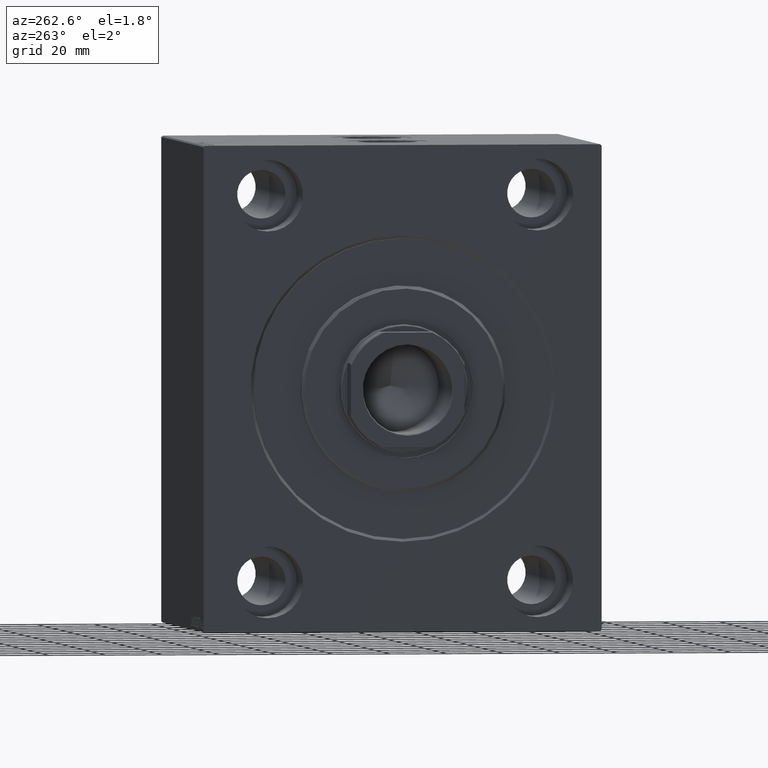
[diagram: clean part render]
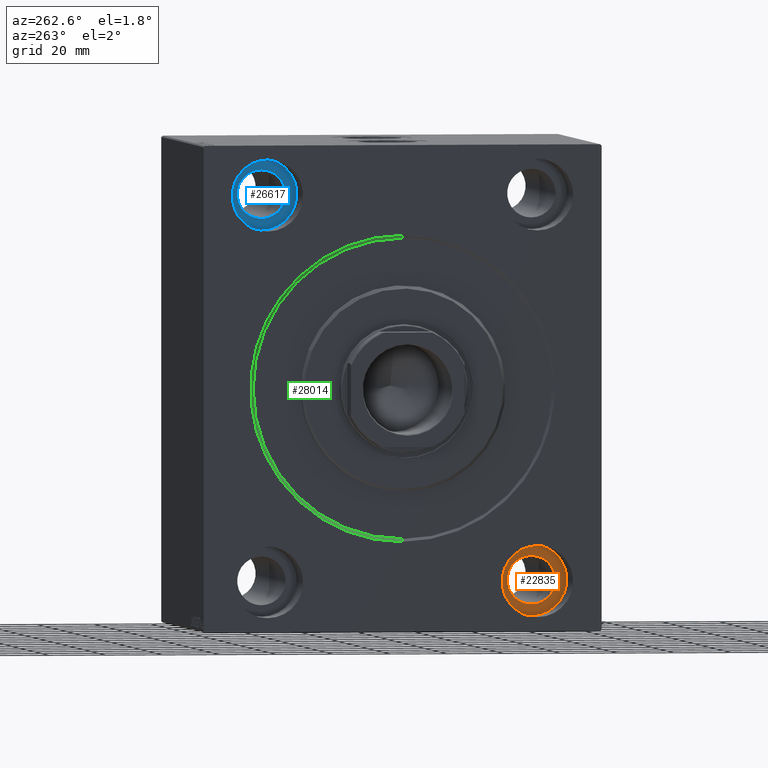
[diagram: same view with three faces highlighted in distinct colors, each labeled with its STEP entity id]
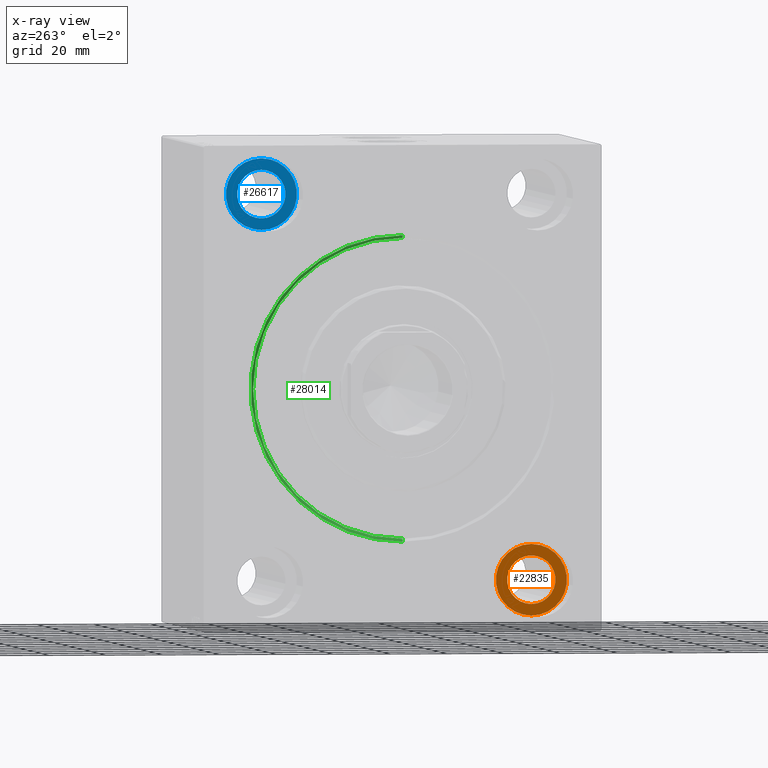
[diagram: x-ray of the same camera — body ghosted, the three highlighted faces saturated]
A machine part, auxiliary view with three faces highlighted in distinct colors.
The next image is the same camera in x-ray (body ghosted, the three faces saturated) — at least one of them is partly hidden behind the body in this view.
Their STEP definitions:

[orange] entity #22835 — the highlighted planar face has unit normal (-1, 0, 0).
#247 = PLANE ( 'NONE',  #7130 ) ;
#604 = AXIS2_PLACEMENT_3D ( 'NONE', #2295, #38782, #12311 ) ;
#1562 = ORIENTED_EDGE ( 'NONE', *, *, #41031, .T. ) ;
#2295 = CARTESIAN_POINT ( 'NONE',  ( 17.00000000000000000, -47.49999999999999289, -67.50000000000000000 ) ) ;
#3621 = FACE_OUTER_BOUND ( 'NONE', #9381, .T. ) ;
#4194 = DIRECTION ( 'NONE',  ( 0.000000000000000000, 0.000000000000000000, 1.000000000000000000 ) ) ;
#4588 = CARTESIAN_POINT ( 'NONE',  ( 17.00000000000000000, -47.49999999999999289, -55.00000000000000711 ) ) ;
#6450 = CARTESIAN_POINT ( 'NONE',  ( 17.00000000000000000, -47.49999999999999289, -76.00000000000000000 ) ) ;
#7114 = ORIENTED_EDGE ( 'NONE', *, *, #32822, .F. ) ;
#7130 = AXIS2_PLACEMENT_3D ( 'NONE', #15338, #30983, #21779 ) ;
#9381 = EDGE_LOOP ( 'NONE', ( #9770, #1562 ) ) ;
#9770 = ORIENTED_EDGE ( 'NONE', *, *, #23290, .T. ) ;
#9928 = AXIS2_PLACEMENT_3D ( 'NONE', #20720, #20928, #20280 ) ;
#11622 = CARTESIAN_POINT ( 'NONE',  ( 17.00000000000000000, -47.49999999999999289, -59.00000000000001421 ) ) ;
#12311 = DIRECTION ( 'NONE',  ( 0.000000000000000000, 0.000000000000000000, 1.000000000000000000 ) ) ;
#13447 = VERTEX_POINT ( 'NONE', #11622 ) ;
#14201 = ORIENTED_EDGE ( 'NONE', *, *, #43703, .F. ) ;
#14820 = CIRCLE ( 'NONE', #604, 12.49999999999999645 ) ;
#15338 = CARTESIAN_POINT ( 'NONE',  ( 17.00000000000000000, 0.000000000000000000, 0.000000000000000000 ) ) ;
#19671 = AXIS2_PLACEMENT_3D ( 'NONE', #21979, #28658, #4194 ) ;
#20280 = DIRECTION ( 'NONE',  ( 0.000000000000000000, 0.000000000000000000, 1.000000000000000000 ) ) ;
#20720 = CARTESIAN_POINT ( 'NONE',  ( 17.00000000000000000, -47.49999999999999289, -67.50000000000000000 ) ) ;
#20747 = VERTEX_POINT ( 'NONE', #21682 ) ;
#20928 = DIRECTION ( 'NONE',  ( -1.000000000000000000, 0.000000000000000000, 0.000000000000000000 ) ) ;
#21682 = CARTESIAN_POINT ( 'NONE',  ( 17.00000000000000000, -47.49999999999999289, -80.00000000000000000 ) ) ;
#21779 = DIRECTION ( 'NONE',  ( 0.000000000000000000, 0.000000000000000000, 1.000000000000000000 ) ) ;
#21979 = CARTESIAN_POINT ( 'NONE',  ( 17.00000000000000000, -47.49999999999999289, -67.50000000000000000 ) ) ;
#22835 = ADVANCED_FACE ( 'NONE', ( #25564, #3621 ), #247, .T. ) ;
#23290 = EDGE_CURVE ( 'NONE', #28601, #20747, #44053, .T. ) ;
#25506 = CARTESIAN_POINT ( 'NONE',  ( 17.00000000000000000, -47.49999999999999289, -67.50000000000000000 ) ) ;
#25564 = FACE_BOUND ( 'NONE', #27180, .T. ) ;
#26247 = CIRCLE ( 'NONE', #9928, 8.499999999999992895 ) ;
#27180 = EDGE_LOOP ( 'NONE', ( #14201, #7114 ) ) ;
#28601 = VERTEX_POINT ( 'NONE', #4588 ) ;
#28658 = DIRECTION ( 'NONE',  ( -1.000000000000000000, 0.000000000000000000, 0.000000000000000000 ) ) ;
#28859 = DIRECTION ( 'NONE',  ( -1.000000000000000000, 0.000000000000000000, 0.000000000000000000 ) ) ;
#30983 = DIRECTION ( 'NONE',  ( -1.000000000000000000, 0.000000000000000000, 0.000000000000000000 ) ) ;
#32822 = EDGE_CURVE ( 'NONE', #37360, #13447, #38857, .T. ) ;
#36241 = AXIS2_PLACEMENT_3D ( 'NONE', #25506, #28859, #42419 ) ;
#37360 = VERTEX_POINT ( 'NONE', #6450 ) ;
#38782 = DIRECTION ( 'NONE',  ( -1.000000000000000000, 0.000000000000000000, 0.000000000000000000 ) ) ;
#38857 = CIRCLE ( 'NONE', #19671, 8.499999999999992895 ) ;
#41031 = EDGE_CURVE ( 'NONE', #20747, #28601, #14820, .T. ) ;
#42419 = DIRECTION ( 'NONE',  ( 0.000000000000000000, 0.000000000000000000, 1.000000000000000000 ) ) ;
#43703 = EDGE_CURVE ( 'NONE', #13447, #37360, #26247, .T. ) ;
#44053 = CIRCLE ( 'NONE', #36241, 12.49999999999999645 ) ;

[blue] entity #26617 — the highlighted planar face has unit normal (-1, 0, 0).
#1645 = DIRECTION ( 'NONE',  ( -1.000000000000000000, 0.000000000000000000, 0.000000000000000000 ) ) ;
#1934 = AXIS2_PLACEMENT_3D ( 'NONE', #7915, #1645, #25451 ) ;
#2351 = EDGE_CURVE ( 'NONE', #30856, #42206, #2438, .T. ) ;
#2438 = CIRCLE ( 'NONE', #26581, 12.50000000000001066 ) ;
#3021 = DIRECTION ( 'NONE',  ( 0.000000000000000000, 0.000000000000000000, 1.000000000000000000 ) ) ;
#6438 = DIRECTION ( 'NONE',  ( 0.000000000000000000, 0.000000000000000000, 1.000000000000000000 ) ) ;
#7915 = CARTESIAN_POINT ( 'NONE',  ( 17.00000000000000000, 47.50000000000000711, 67.50000000000000000 ) ) ;
#9676 = DIRECTION ( 'NONE',  ( 0.000000000000000000, 0.000000000000000000, 1.000000000000000000 ) ) ;
#10610 = EDGE_CURVE ( 'NONE', #42206, #30856, #12574, .T. ) ;
#11451 = ORIENTED_EDGE ( 'NONE', *, *, #2351, .T. ) ;
#11817 = ORIENTED_EDGE ( 'NONE', *, *, #39403, .F. ) ;
#12574 = CIRCLE ( 'NONE', #1934, 12.50000000000001066 ) ;
#13498 = CIRCLE ( 'NONE', #38347, 8.500000000000007105 ) ;
#16501 = CARTESIAN_POINT ( 'NONE',  ( 17.00000000000000000, 0.000000000000000000, 0.000000000000000000 ) ) ;
#16558 = VERTEX_POINT ( 'NONE', #35152 ) ;
#18964 = EDGE_CURVE ( 'NONE', #16558, #20994, #29726, .T. ) ;
#19061 = CARTESIAN_POINT ( 'NONE',  ( 17.00000000000000000, 47.50000000000000711, 80.00000000000001421 ) ) ;
#19840 = DIRECTION ( 'NONE',  ( 0.000000000000000000, 0.000000000000000000, 1.000000000000000000 ) ) ;
#20994 = VERTEX_POINT ( 'NONE', #41647 ) ;
#22579 = DIRECTION ( 'NONE',  ( -1.000000000000000000, 0.000000000000000000, 0.000000000000000000 ) ) ;
#22698 = ORIENTED_EDGE ( 'NONE', *, *, #10610, .T. ) ;
#23151 = DIRECTION ( 'NONE',  ( -1.000000000000000000, 0.000000000000000000, 0.000000000000000000 ) ) ;
#24213 = AXIS2_PLACEMENT_3D ( 'NONE', #16501, #23151, #19840 ) ;
#24314 = ORIENTED_EDGE ( 'NONE', *, *, #18964, .F. ) ;
#25383 = CARTESIAN_POINT ( 'NONE',  ( 17.00000000000000000, 47.50000000000000711, 55.00000000000000000 ) ) ;
#25451 = DIRECTION ( 'NONE',  ( 0.000000000000000000, 0.000000000000000000, 1.000000000000000000 ) ) ;
#26581 = AXIS2_PLACEMENT_3D ( 'NONE', #39483, #22579, #9676 ) ;
#26617 = ADVANCED_FACE ( 'NONE', ( #29863, #43417 ), #40065, .T. ) ;
#27668 = EDGE_LOOP ( 'NONE', ( #11451, #22698 ) ) ;
#29726 = CIRCLE ( 'NONE', #35407, 8.500000000000007105 ) ;
#29863 = FACE_BOUND ( 'NONE', #36609, .T. ) ;
#30856 = VERTEX_POINT ( 'NONE', #19061 ) ;
#33572 = CARTESIAN_POINT ( 'NONE',  ( 17.00000000000000000, 47.50000000000000711, 67.50000000000000000 ) ) ;
#35152 = CARTESIAN_POINT ( 'NONE',  ( 17.00000000000000000, 47.50000000000000711, 59.00000000000000000 ) ) ;
#35407 = AXIS2_PLACEMENT_3D ( 'NONE', #39949, #42848, #3021 ) ;
#36609 = EDGE_LOOP ( 'NONE', ( #11817, #24314 ) ) ;
#36922 = DIRECTION ( 'NONE',  ( -1.000000000000000000, 0.000000000000000000, 0.000000000000000000 ) ) ;
#38347 = AXIS2_PLACEMENT_3D ( 'NONE', #33572, #36922, #6438 ) ;
#39403 = EDGE_CURVE ( 'NONE', #20994, #16558, #13498, .T. ) ;
#39483 = CARTESIAN_POINT ( 'NONE',  ( 17.00000000000000000, 47.50000000000000711, 67.50000000000000000 ) ) ;
#39949 = CARTESIAN_POINT ( 'NONE',  ( 17.00000000000000000, 47.50000000000000711, 67.50000000000000000 ) ) ;
#40065 = PLANE ( 'NONE',  #24213 ) ;
#41647 = CARTESIAN_POINT ( 'NONE',  ( 17.00000000000000000, 47.50000000000000711, 76.00000000000001421 ) ) ;
#42206 = VERTEX_POINT ( 'NONE', #25383 ) ;
#42848 = DIRECTION ( 'NONE',  ( -1.000000000000000000, 0.000000000000000000, 0.000000000000000000 ) ) ;
#43417 = FACE_OUTER_BOUND ( 'NONE', #27668, .T. ) ;

[green] entity #28014 — the highlighted conical surface has half-angle 45 deg.
#1168 = FACE_OUTER_BOUND ( 'NONE', #35267, .T. ) ;
#1409 = CARTESIAN_POINT ( 'NONE',  ( 1.000000000000021760, 0.000000000000000000, 0.000000000000000000 ) ) ;
#3358 = DIRECTION ( 'NONE',  ( 0.000000000000000000, 0.000000000000000000, -1.000000000000000000 ) ) ;
#3960 = AXIS2_PLACEMENT_3D ( 'NONE', #24758, #14116, #27458 ) ;
#4636 = DIRECTION ( 'NONE',  ( -0.7071067811865524577, 0.000000000000000000, 0.7071067811865426878 ) ) ;
#6415 = ORIENTED_EDGE ( 'NONE', *, *, #26524, .F. ) ;
#6495 = EDGE_CURVE ( 'NONE', #15351, #35896, #20903, .T. ) ;
#6579 = CARTESIAN_POINT ( 'NONE',  ( 0.000000000000000000, 0.000000000000000000, 53.50000000000000000 ) ) ;
#9823 = CARTESIAN_POINT ( 'NONE',  ( 0.000000000000000000, 0.000000000000000000, 0.000000000000000000 ) ) ;
#10074 = CARTESIAN_POINT ( 'NONE',  ( 1.000000000000021760, 0.000000000000000000, 52.49999999999999289 ) ) ;
#13593 = CIRCLE ( 'NONE', #19271, 53.50000000000000000 ) ;
#14116 = DIRECTION ( 'NONE',  ( -1.000000000000000000, 0.000000000000000000, 0.000000000000000000 ) ) ;
#14467 = VERTEX_POINT ( 'NONE', #10074 ) ;
#15351 = VERTEX_POINT ( 'NONE', #22927 ) ;
#19271 = AXIS2_PLACEMENT_3D ( 'NONE', #9823, #20268, #3358 ) ;
#19610 = CIRCLE ( 'NONE', #31676, 52.49999999999999289 ) ;
#20268 = DIRECTION ( 'NONE',  ( 1.000000000000000000, 0.000000000000000000, 0.000000000000000000 ) ) ;
#20903 = LINE ( 'NONE', #38033, #42313 ) ;
#22927 = CARTESIAN_POINT ( 'NONE',  ( 1.000000000000021760, 6.429395695523603167E-15, -52.49999999999999289 ) ) ;
#24758 = CARTESIAN_POINT ( 'NONE',  ( 1.000000000000021760, 0.000000000000000000, 0.000000000000000000 ) ) ;
#24875 = CARTESIAN_POINT ( 'NONE',  ( 1.000000000000021760, 0.000000000000000000, 52.49999999999999289 ) ) ;
#25255 = CONICAL_SURFACE ( 'NONE', #3960, 52.49999999999999289, 0.7853981633974415066 ) ;
#26371 = VERTEX_POINT ( 'NONE', #6579 ) ;
#26524 = EDGE_CURVE ( 'NONE', #35896, #26371, #13593, .T. ) ;
#27458 = DIRECTION ( 'NONE',  ( 0.000000000000000000, 0.000000000000000000, 1.000000000000000000 ) ) ;
#27889 = ORIENTED_EDGE ( 'NONE', *, *, #30355, .F. ) ;
#28014 = ADVANCED_FACE ( 'NONE', ( #1168 ), #25255, .F. ) ;
#29659 = VECTOR ( 'NONE', #4636, 1000.000000000000000 ) ;
#30355 = EDGE_CURVE ( 'NONE', #14467, #15351, #19610, .T. ) ;
#31676 = AXIS2_PLACEMENT_3D ( 'NONE', #1409, #42787, #32358 ) ;
#32358 = DIRECTION ( 'NONE',  ( 0.000000000000000000, 0.000000000000000000, -1.000000000000000000 ) ) ;
#33671 = EDGE_CURVE ( 'NONE', #14467, #26371, #34086, .T. ) ;
#34086 = LINE ( 'NONE', #24875, #29659 ) ;
#35101 = ORIENTED_EDGE ( 'NONE', *, *, #6495, .F. ) ;
#35267 = EDGE_LOOP ( 'NONE', ( #35101, #27889, #37537, #6415 ) ) ;
#35787 = CARTESIAN_POINT ( 'NONE',  ( 0.000000000000000000, 6.551860375438339893E-15, -53.50000000000000000 ) ) ;
#35896 = VERTEX_POINT ( 'NONE', #35787 ) ;
#37537 = ORIENTED_EDGE ( 'NONE', *, *, #33671, .T. ) ;
#37612 = DIRECTION ( 'NONE',  ( -0.7071067811865524577, 8.659560562354873694E-17, -0.7071067811865426878 ) ) ;
#38033 = CARTESIAN_POINT ( 'NONE',  ( 1.000000000000021760, 6.429395695523603167E-15, -52.49999999999999289 ) ) ;
#42313 = VECTOR ( 'NONE', #37612, 1000.000000000000000 ) ;
#42787 = DIRECTION ( 'NONE',  ( -1.000000000000000000, 0.000000000000000000, 0.000000000000000000 ) ) ;